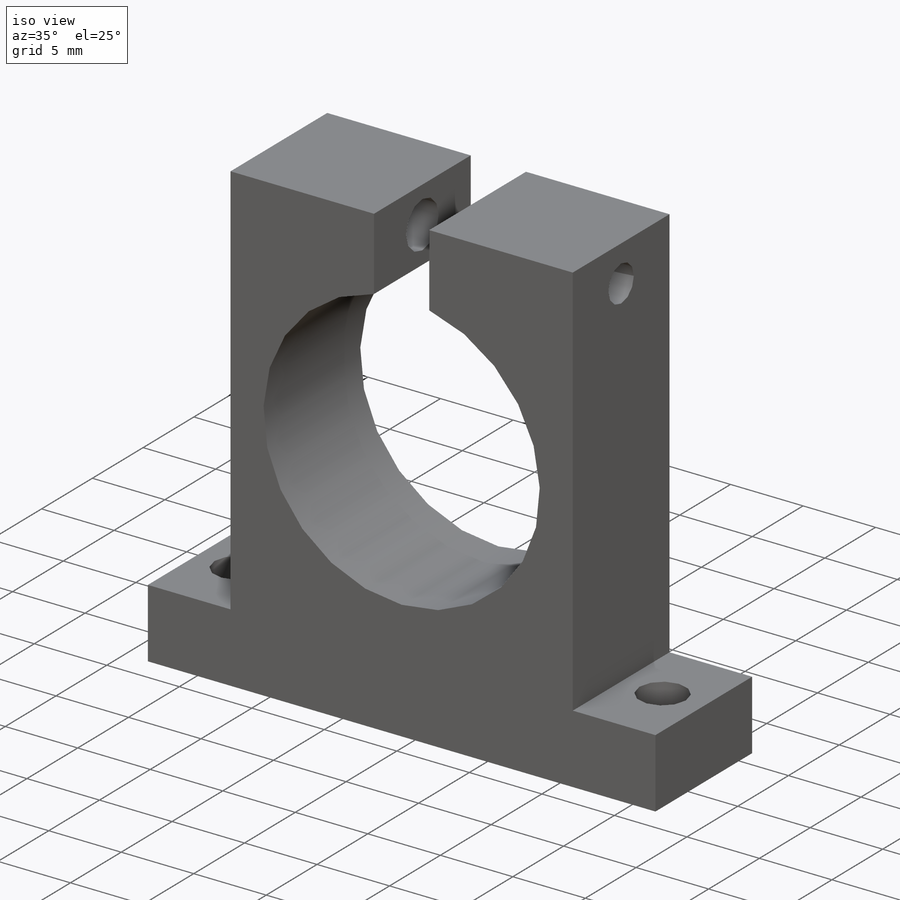
[diagram: iso view]
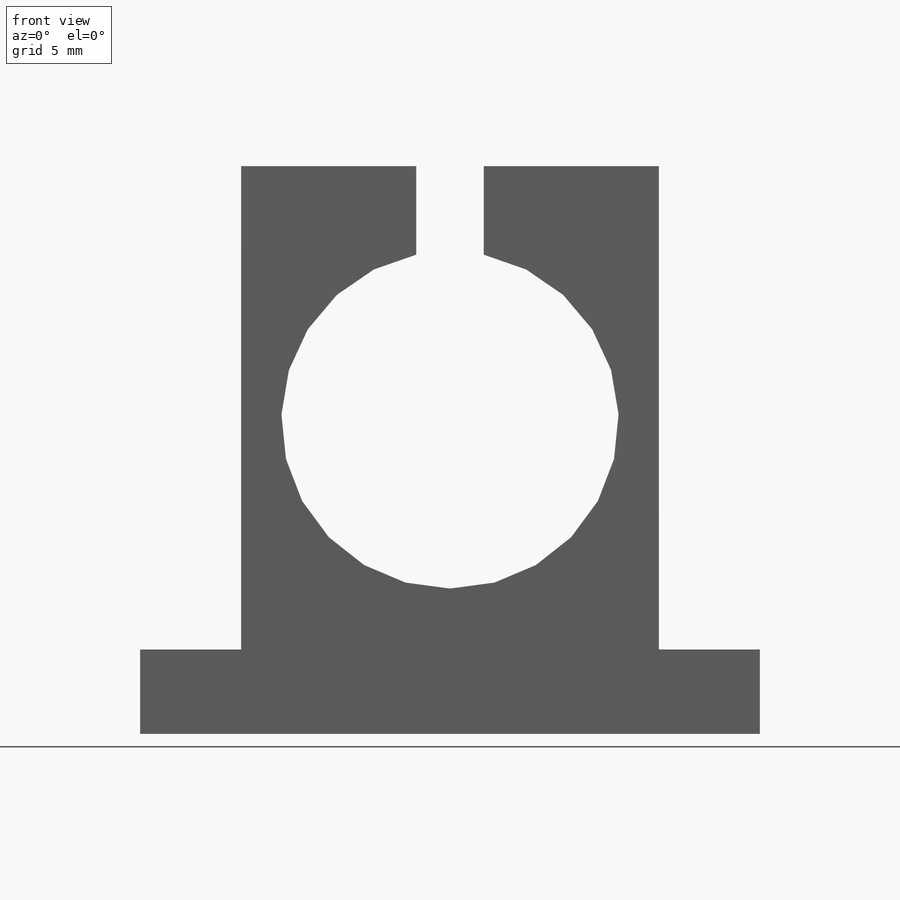
[diagram: front view]
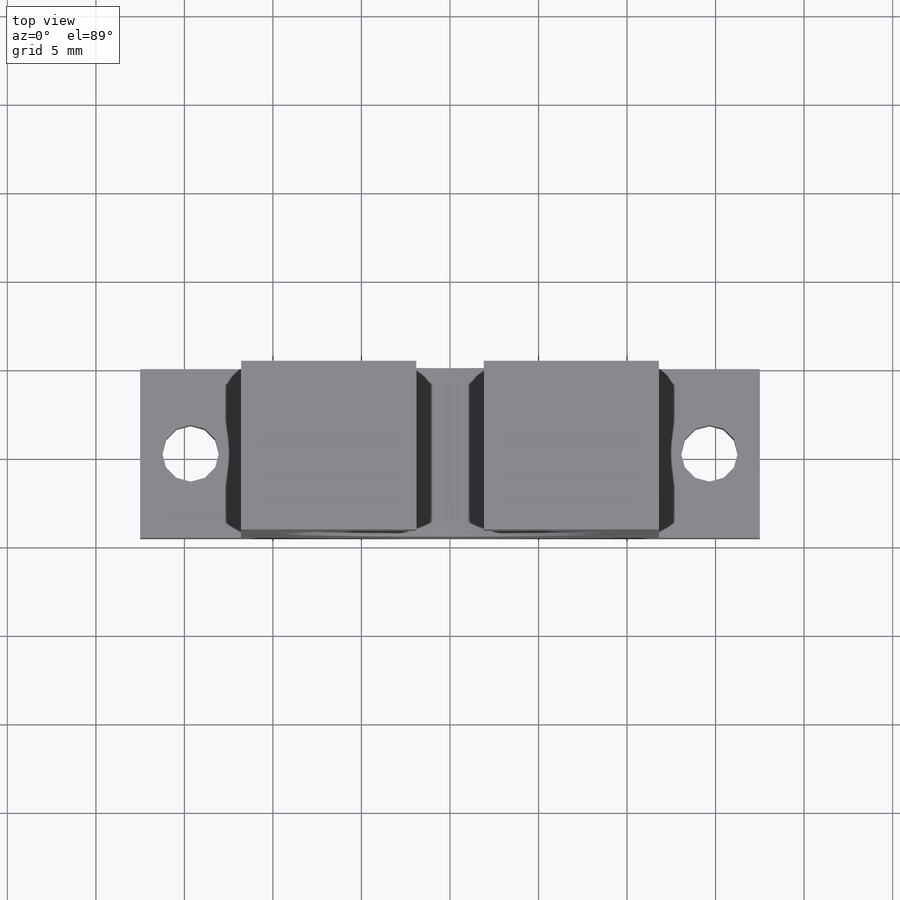
[diagram: top view]
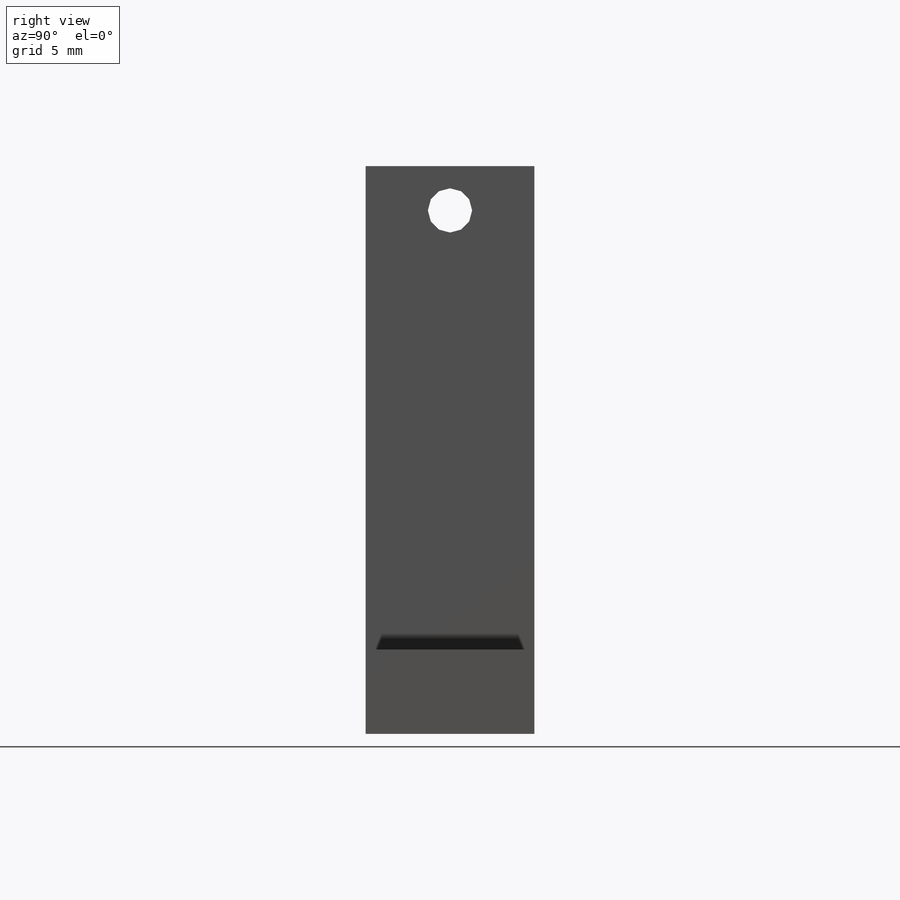
[diagram: right view]
SOLIDWORKS PART (.sldprt)
format: sldprt  version: not decoded by parser v0  size: 336,896 bytes
history: native  units: mm
features: sketch x9, hole x4, material x1, extrude x1 (+13 scaffold rows collapsed)
feature tree (28):
  scaffold x13  (default folders/planes/origin — collapsed)
  material  "6061-T6 (SS)"
  sketch  "Sketch7"  dims[c1.D1=~16.580309mm c1.D3=~3.552933mm c1.D4=10.0mm c1.D6=10.0mm c1.D7=10.0mm c1.D2=9.525mm c1.D8=10.0mm c2.D4=10.0mm c2.D1=2.0mm c2.D2=2.0mm c2.D3=2.5mm c3.D4=35.0mm c3.D3=5.0mm c4.D4=5.0mm c4.D3=5.0mm c5.D4=5.0mm c5.D3=2.5mm c6.D4=2.5mm c6.D5=5.0mm c6.D6=5.0mm c6.D1=~2.502041mm c6.D2=35.0mm c7.D5=32.063mm c7.D7=4.763mm c7.D1=25.0mm c7.D3=27.3mm c7.D4=5.0mm c8.D1=5.7mm c8.D4=2.275mm]
  extrude  "Boss-Extrude3"  Depth=9.525mm
  hole  "Tap Drill for M3x0.5 Tap1"  Diameter=2.5mm Depth=9.895mm
  sketch  "Sketch11"  dims[D1=2.5mm]
  sketch  "Sketch10"  dims[hole-wizard template sketch: 60 standard entries collapsed; hole parameters kept: c18.Thru Hole Depth=9.895mm]
  hole  "M3 Clearance Hole1"  Diameter=3.2mm Depth=4.763mm
  sketch  "Sketch15"  dims[c1.D1=4.7625mm c1.D2=2.85mm c2.D1=~4.749622mm]
  sketch  "Sketch14"  dims[hole-wizard template sketch: 61 standard entries collapsed; hole parameters above]
  hole  "M3 Clearance Hole2"  Diameter=3.2mm Depth=4.76mm
  sketch  "Sketch17"  dims[c1.D1=4.7625mm c1.D2=2.85mm c2.D1=~4.749622mm]
  sketch  "Sketch16"  dims[hole-wizard template sketch: 47 standard entries collapsed; hole parameters kept: c15.Hole Depth=4.76mm c15.D3=~14.816244mm c15.Drill Angle=118.0deg]
  hole  "M3 Clearance Hole3"  Diameter=3.2mm Depth=9.895mm
  sketch  "Sketch19"  dims[D1=2.5mm D2=5.0mm]
  sketch  "Sketch18"  dims[hole-wizard template sketch: 60 standard entries collapsed; hole parameters kept: c18.Thru Hole Depth=9.895mm]
decode coverage: 14 of 14 modeling features carry decoded parameters
note: ~ marks probable driven/reference dimensions
summary: Diameter pulled from absorbed wizard sketch
note: suppression state not decoded; provenance and decode notes live in map.json
